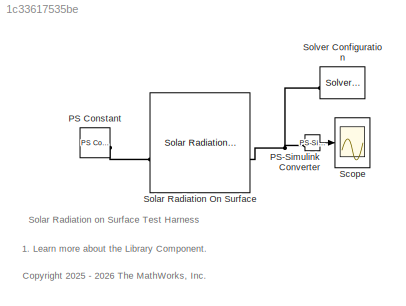
MODEL slx_1c33617535be
KIND model
CONFIG AbsTol = 1e-3
CONFIG EnableMultiTasking = off
CONFIG FixedStep = 3600
CONFIG MaxStep = 3
CONFIG MinStep = auto
CONFIG PreLoadFcn = WallModelParams
CONFIG RelTol = 1e-3
CONFIG SampleTimeConstraint = Unconstrained
CONFIG SolverName = daessc
CONFIG StartTime = 0.0
CONFIG StopTime = 24*3600
BLOCK [Reference] PS Constant  REF=fl_lib/Physical Signals/Sources/PS Constant
  SourceBlock = fl_lib/Physical Signals/Sources/PS Constant
  SourceType = PS Constant
BLOCK [Reference] PS-Simulink Converter  REF=nesl_utility/PS-Simulink
Converter
  SourceBlock = nesl_utility/PS-Simulink\nConverter
  SourceType = PS-Simulink\nConverter
BLOCK [Scope] Scope
  ActiveDisplayYMaximum = 1402.37739
  ActiveDisplayYMinimum = -155.81971
  Floating = off
  GraphicalSettings = {"GraphicalSettings":{"LegacySettings":true,"Style":{"AxesScalingProperties":{"ScaleAxesLimitsAtStop":false},"Style":{"AxesColor":"[0 0 0]","ChannelNames":[""],"ColorOrder":"[1 0.909803921568627 0.392156862745098;0.149019607843137 0.549019607843137 0.866666666666667;0.96078431372549 0.466666666666667 0.16078431372549;0.286274509803922 0.858823529411765 0.250980392156863;0.752941176470588 0.3607843...<+513ch>
  MultipleDisplayCache = [{"MaxYLimMag":1402.37739,"MaxYLimReal":1402.37739,"MinYLimMag":0,"MinYLimReal":-155.81971,"PlotAsMagnitudePhase":false,"ShowGrid":true,"ShowLegend":false,"Title":"%<SignalLabel>","YLabel":""}]
  NumInputPorts = 1
  ScopeFrameLocation = window
  Visible = on
  WasSavedAsWebScope = on
  WindowPosition = [908.000000,398.000000,314.000000,398.000000,]
BLOCK [Reference] Solar Radiation On Surface  REF=SolarRadiationOnSurface_lib/Solar Radiation On
Surface
  SourceBlock = SolarRadiationOnSurface_lib/Solar Radiation On\nSurface
  SourceType = Solar Radiation On\nSurface
BLOCK [Reference] Solver Configuration  REF=nesl_utility/Solver
Configuration
  NameLocation = right
  SourceBlock = nesl_utility/Solver\nConfiguration
  SourceType = Solver\nConfiguration
ANNOTATION (root): 1. Learn more about the Library Component.
ANNOTATION (root): <copyright redacted>
ANNOTATION (root): Solar Radiation on Surface Test Harness
LINE PS-Simulink Converter:1 -> Scope:1
PLINE PS Constant:RConn1 -- Solar Radiation On Surface:LConn1
PNET net1: PS-Simulink Converter:LConn1 -- Solar Radiation On Surface:RConn1 -- Solver Configuration:RConn1
note: PNET lines group multi-terminal physical nets as a canonical sorted terminal list (undirected conserving connections); 2-terminal nets keep the pairwise PLINE form
